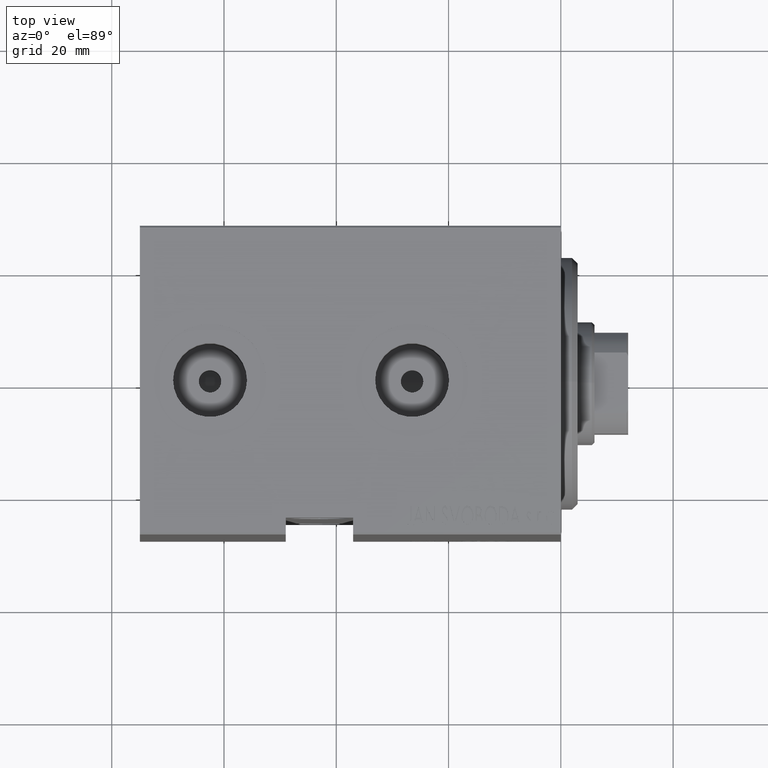
[diagram: clean part render]
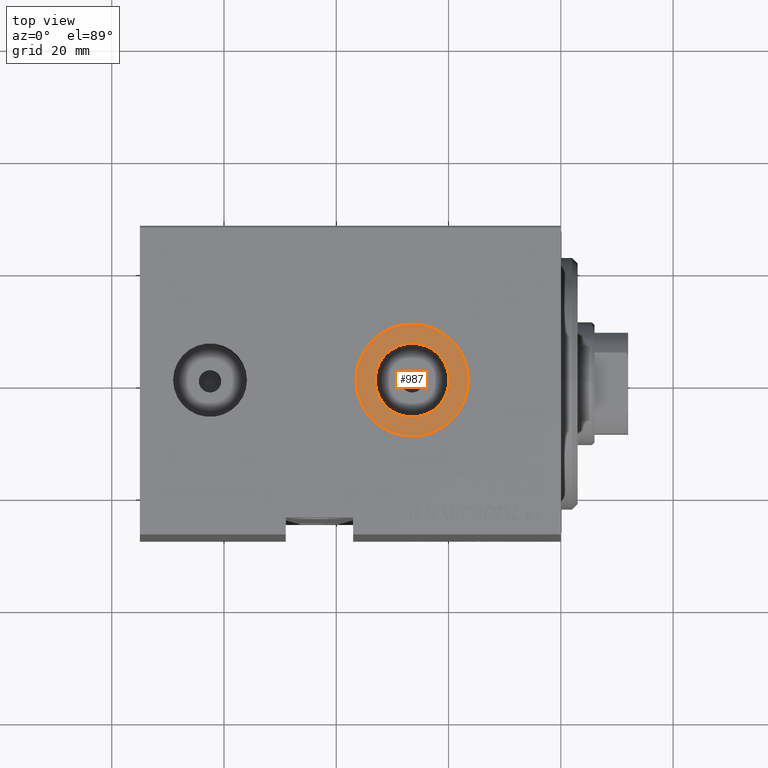
[diagram: same view with one face highlighted and labeled with its STEP entity id]
A machine part, top view. The second image highlights one B-rep face of the part: STEP entity #987.
In plain terms, the highlighted planar face has unit normal (0, 0, 1).
Its self-contained STEP definition (entity closure, byte-faithful):
#880 = EDGE_LOOP ( 'NONE', ( #6054, #42660 ) ) ;
#915 = AXIS2_PLACEMENT_3D ( 'NONE', #30328, #13435, #26991 ) ;
#987 = ADVANCED_FACE ( 'NONE', ( #37258, #24367 ), #7246, .T. ) ;
#2301 = ORIENTED_EDGE ( 'NONE', *, *, #9557, .T. ) ;
#3750 = CIRCLE ( 'NONE', #915, 10.00000000000000533 ) ;
#3862 = DIRECTION ( 'NONE',  ( 1.000000000000000000, 0.000000000000000000, 0.000000000000000000 ) ) ;
#5156 = AXIS2_PLACEMENT_3D ( 'NONE', #31741, #8167, #32192 ) ;
#6054 = ORIENTED_EDGE ( 'NONE', *, *, #35935, .F. ) ;
#7246 = PLANE ( 'NONE',  #32057 ) ;
#7549 = CARTESIAN_POINT ( 'NONE',  ( 33.07999999999999829, -9.462128050782584868E-15, 37.39999999999999858 ) ) ;
#7865 = CARTESIAN_POINT ( 'NONE',  ( 26.50000000000000000, -9.462128050782584868E-15, 37.39999999999999858 ) ) ;
#8167 = DIRECTION ( 'NONE',  ( 0.000000000000000000, 0.000000000000000000, 1.000000000000000000 ) ) ;
#8286 = EDGE_CURVE ( 'NONE', #41116, #21718, #38519, .T. ) ;
#9490 = VERTEX_POINT ( 'NONE', #10534 ) ;
#9557 = EDGE_CURVE ( 'NONE', #9490, #43944, #3750, .T. ) ;
#10534 = CARTESIAN_POINT ( 'NONE',  ( 16.49999999999999289, -8.237481251635231809E-15, 37.39999999999999858 ) ) ;
#10581 = CARTESIAN_POINT ( 'NONE',  ( 36.50000000000000711, -9.462128050782584868E-15, 37.39999999999999858 ) ) ;
#12461 = ORIENTED_EDGE ( 'NONE', *, *, #12858, .T. ) ;
#12858 = EDGE_CURVE ( 'NONE', #43944, #9490, #32216, .T. ) ;
#13435 = DIRECTION ( 'NONE',  ( 0.000000000000000000, 0.000000000000000000, 1.000000000000000000 ) ) ;
#13508 = AXIS2_PLACEMENT_3D ( 'NONE', #14809, #27928, #41256 ) ;
#13578 = EDGE_LOOP ( 'NONE', ( #12461, #2301 ) ) ;
#14809 = CARTESIAN_POINT ( 'NONE',  ( 26.50000000000000000, -9.462128050782584868E-15, 37.39999999999999858 ) ) ;
#21718 = VERTEX_POINT ( 'NONE', #7549 ) ;
#23924 = CARTESIAN_POINT ( 'NONE',  ( 26.50000000000000000, -9.462128050782584868E-15, 37.39999999999999858 ) ) ;
#24101 = DIRECTION ( 'NONE',  ( 0.000000000000000000, 0.000000000000000000, 1.000000000000000000 ) ) ;
#24367 = FACE_OUTER_BOUND ( 'NONE', #13578, .T. ) ;
#26516 = AXIS2_PLACEMENT_3D ( 'NONE', #7865, #24101, #3862 ) ;
#26991 = DIRECTION ( 'NONE',  ( 1.000000000000000000, 0.000000000000000000, 0.000000000000000000 ) ) ;
#27699 = DIRECTION ( 'NONE',  ( 0.000000000000000000, 0.000000000000000000, 1.000000000000000000 ) ) ;
#27928 = DIRECTION ( 'NONE',  ( 0.000000000000000000, 0.000000000000000000, 1.000000000000000000 ) ) ;
#29141 = CIRCLE ( 'NONE', #13508, 6.579999999999999183 ) ;
#30328 = CARTESIAN_POINT ( 'NONE',  ( 26.50000000000000000, -9.462128050782584868E-15, 37.39999999999999858 ) ) ;
#31251 = DIRECTION ( 'NONE',  ( 1.000000000000000000, 0.000000000000000000, -0.000000000000000000 ) ) ;
#31741 = CARTESIAN_POINT ( 'NONE',  ( 26.50000000000000000, -9.462128050782584868E-15, 37.39999999999999858 ) ) ;
#32057 = AXIS2_PLACEMENT_3D ( 'NONE', #23924, #27699, #31251 ) ;
#32192 = DIRECTION ( 'NONE',  ( 1.000000000000000000, 0.000000000000000000, 0.000000000000000000 ) ) ;
#32216 = CIRCLE ( 'NONE', #26516, 10.00000000000000533 ) ;
#35416 = CARTESIAN_POINT ( 'NONE',  ( 19.92000000000000171, -8.656310456943627404E-15, 37.39999999999999858 ) ) ;
#35935 = EDGE_CURVE ( 'NONE', #21718, #41116, #29141, .T. ) ;
#37258 = FACE_BOUND ( 'NONE', #880, .T. ) ;
#38519 = CIRCLE ( 'NONE', #5156, 6.579999999999999183 ) ;
#41116 = VERTEX_POINT ( 'NONE', #35416 ) ;
#41256 = DIRECTION ( 'NONE',  ( 1.000000000000000000, 0.000000000000000000, 0.000000000000000000 ) ) ;
#42660 = ORIENTED_EDGE ( 'NONE', *, *, #8286, .F. ) ;
#43944 = VERTEX_POINT ( 'NONE', #10581 ) ;